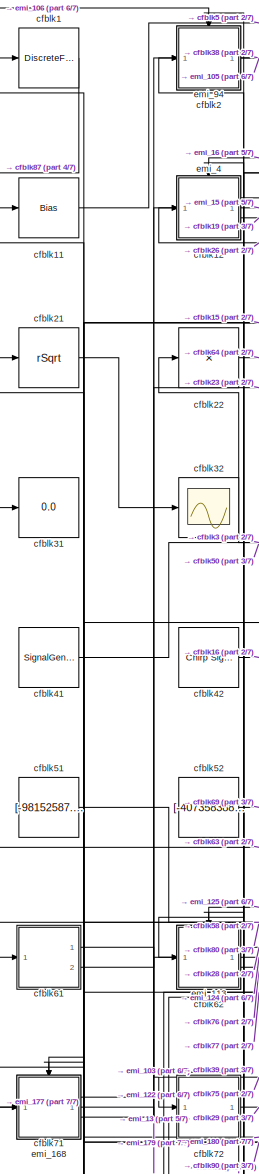
[diagram: root canvas - part 1/7, top left region]
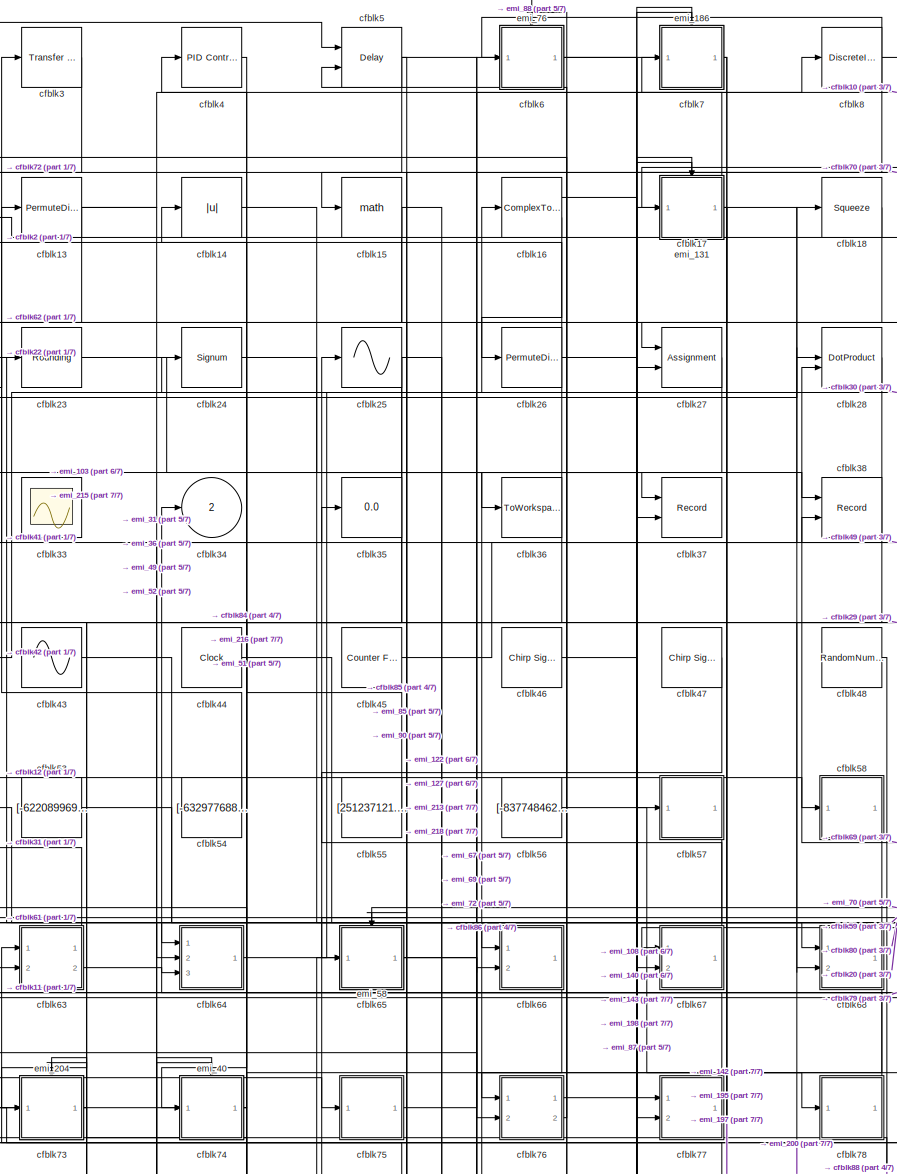
[diagram: root canvas - part 2/7, top center region]
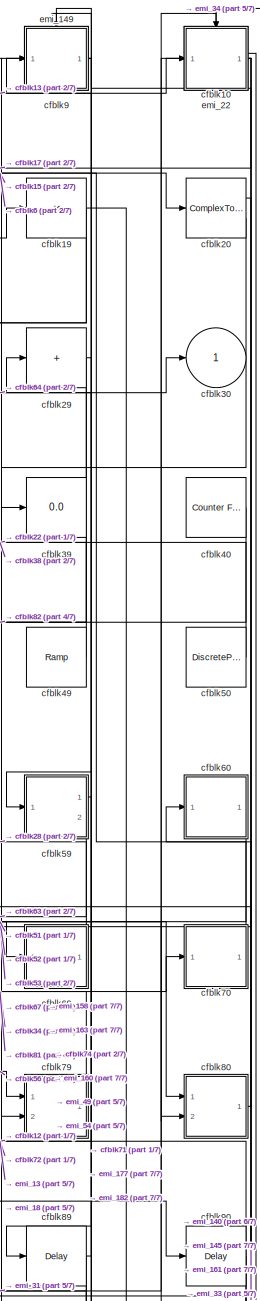
[diagram: root canvas - part 3/7, top right region]
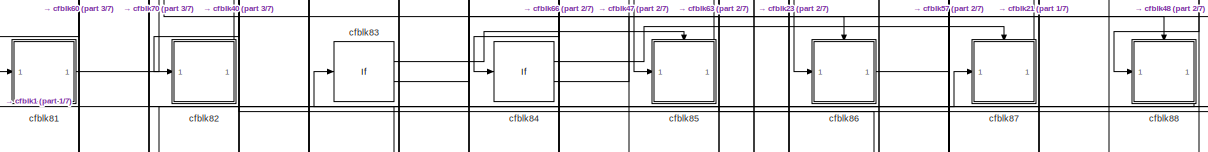
[diagram: root canvas - part 4/7, full width, middle band]
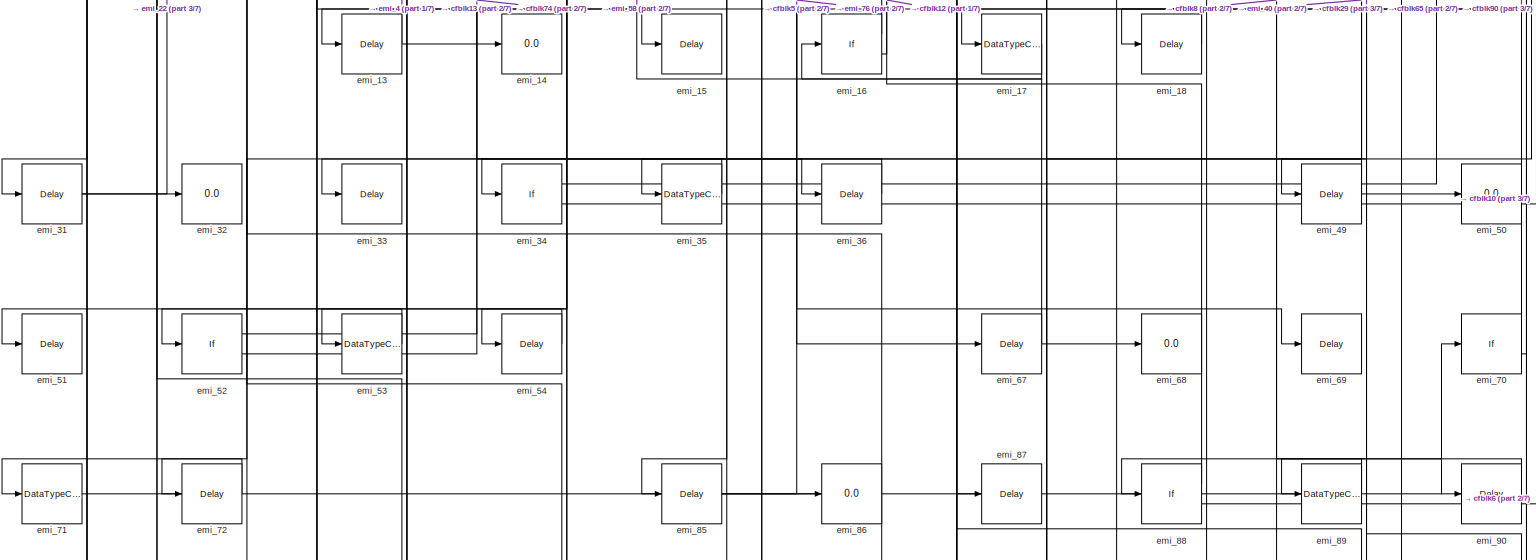
[diagram: root canvas - part 5/7, full width, bottom band]
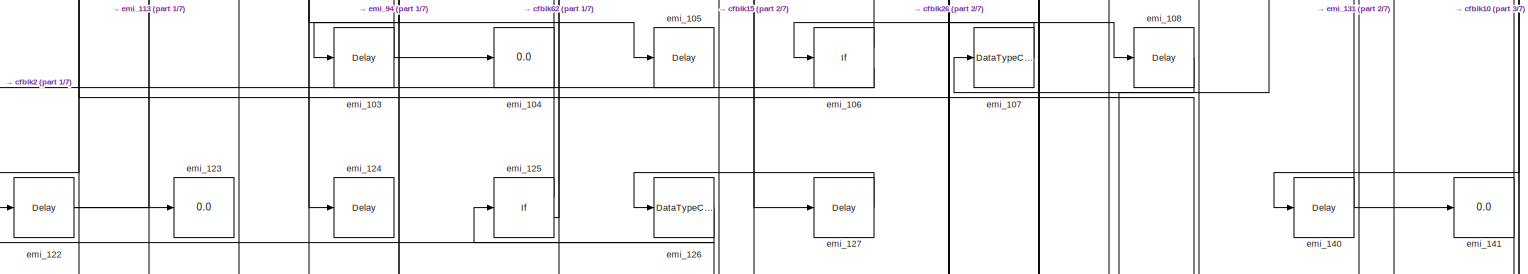
[diagram: root canvas - part 6/7, full width, bottom band]
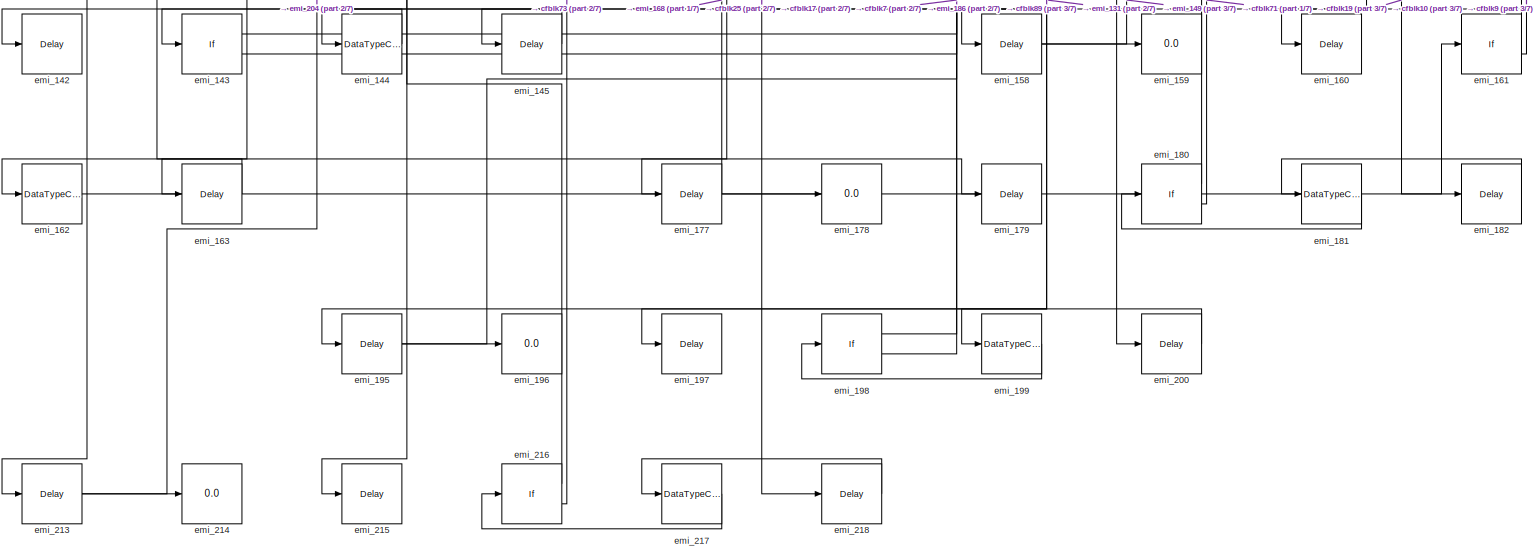
[diagram: root canvas - part 7/7, full width, bottom band]
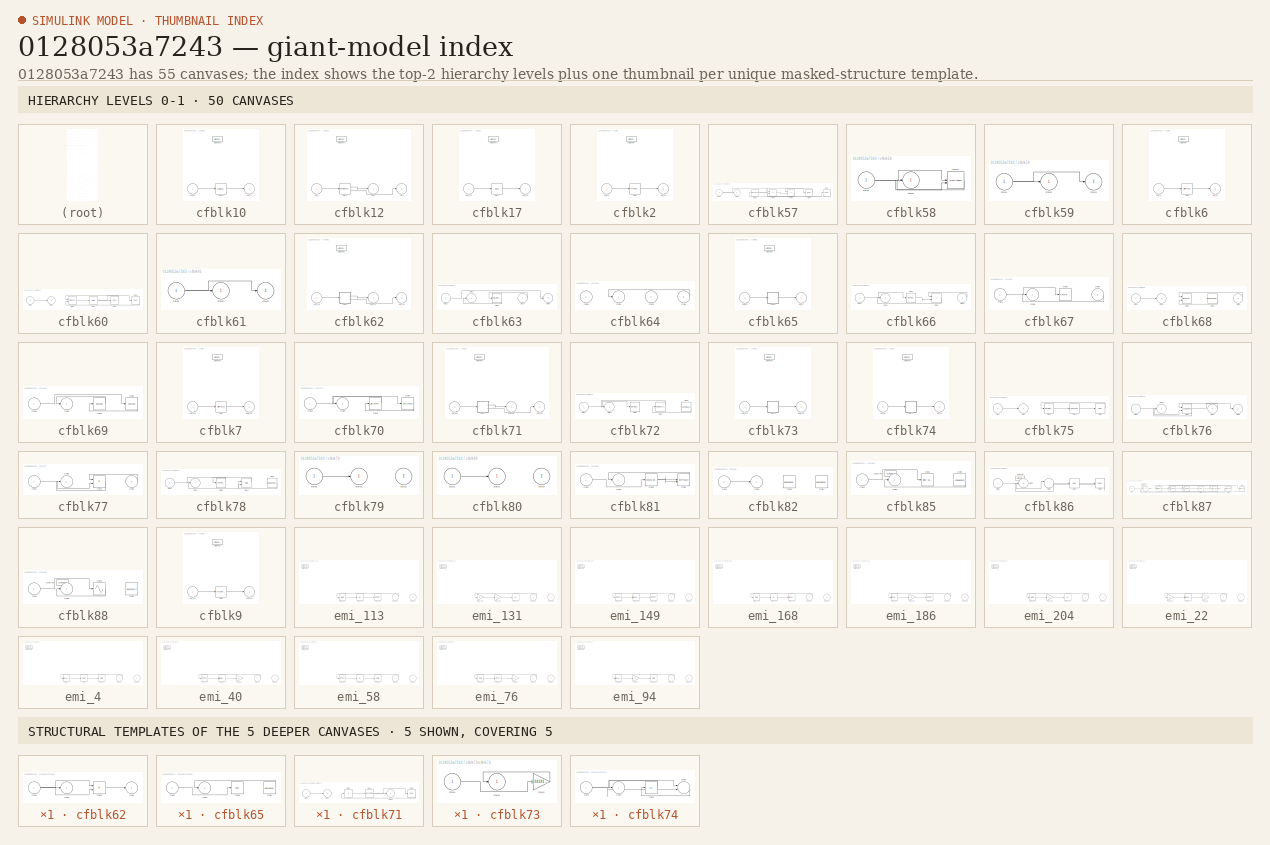
[diagram: thumbnail index - top-2 hierarchy levels (50 canvases) + 5 structural-template representatives of the remaining 5 canvases]
MODEL slx_0128053a7243
KIND model
CONFIG AbsTol = auto
CONFIG EnableMultiTasking = off
CONFIG FixedStep = auto
CONFIG MaxStep = auto
CONFIG MinStep = auto
CONFIG RelTol = 1e-3
CONFIG SampleTimeConstraint = Unconstrained
CONFIG SolverName = VariableStepAuto
CONFIG StartTime = 0.0
CONFIG StopTime = 10.0
BLOCK [DiscreteFir] cfblk1
  InputPortMap = u0
  OutputPortMap = o0
  Ports = [1, 1]
  SampleTime = 1
BLOCK [SubSystem] cfblk10
  Ports = [1, 1, 0, 0, 0, 0, 0, 1]
  RequestExecContextInheritance = off
  TreatAsAtomicUnit = on
BLOCK [ActionPort] cfblk10/Action Port
  ActionPortLabel = else
BLOCK [Trigonometry] cfblk10/cfblk10
  Ports = [1, 1]
BLOCK [Inport] cfblk10/emi_20
BLOCK [Outport] cfblk10/emi_21
BLOCK [Bias] cfblk11
  Bias = [-196383932.496117]
  SaturateOnIntegerOverflow = off
BLOCK [SubSystem] cfblk12
  Ports = [1, 2, 0, 0, 0, 0, 0, 1]
  RequestExecContextInheritance = off
  TreatAsAtomicUnit = on
BLOCK [ActionPort] cfblk12/Action Port
  ActionPortLabel = else
BLOCK [ComplexToMagnitudeAngle] cfblk12/cfblk12
  Ports = [1, 2]
BLOCK [Inport] cfblk12/emi_1
BLOCK [Outport] cfblk12/emi_2
BLOCK [Outport] cfblk12/emi_3
  Port = 2
BLOCK [PermuteDimensions] cfblk13
BLOCK [Abs] cfblk14
  SaturateOnIntegerOverflow = off
BLOCK [Math] cfblk15
  Ports = [1, 1]
BLOCK [ComplexToMagnitudeAngle] cfblk16
  Ports = [1, 2]
BLOCK [SubSystem] cfblk17
  Ports = [1, 1, 0, 0, 0, 0, 0, 1]
  RequestExecContextInheritance = off
  TreatAsAtomicUnit = on
BLOCK [ActionPort] cfblk17/Action Port
  ActionPortLabel = else
BLOCK [Sqrt] cfblk17/cfblk17
BLOCK [Inport] cfblk17/emi_129
BLOCK [Outport] cfblk17/emi_130
BLOCK [Squeeze] cfblk18
BLOCK [Product] cfblk19
  Inputs = *
  Ports = [1, 1]
BLOCK [SubSystem] cfblk2
  Ports = [1, 1, 0, 0, 0, 0, 0, 1]
  RequestExecContextInheritance = off
  TreatAsAtomicUnit = on
BLOCK [ActionPort] cfblk2/Action Port
  ActionPortLabel = else
BLOCK [Reference] cfblk2/cfblk2  REF=simulink/Discrete/Transfer Fcn
First Order
  Ports = [1, 1]
  SourceBlock = simulink/Discrete/Transfer Fcn\nFirst Order
  SourceProductBaseCode = SL
  SourceType = First Order Transfer Fcn
BLOCK [Inport] cfblk2/emi_92
BLOCK [Outport] cfblk2/emi_93
BLOCK [ComplexToMagnitudeAngle] cfblk20
  Ports = [1, 2]
BLOCK [Sqrt] cfblk21
  AlgorithmType = Newton-Raphson
  Operator = rSqrt
BLOCK [Product] cfblk22
  Inputs = *
  Ports = [1, 1]
BLOCK [Rounding] cfblk23
BLOCK [Signum] cfblk24
BLOCK [Sin] cfblk25
  Ports = [1, 1]
  SampleTime = 0
  TimeSource = Use external signal
BLOCK [PermuteDimensions] cfblk26
BLOCK [Assignment] cfblk27
  DiagnosticForDimensions = Warning
  IndexOptions = Index vector (dialog)
  Indices = 1
  OutputSizes = 1
  Ports = [2, 1]
BLOCK [DotProduct] cfblk28
  OutDataTypeStr = Inherit: Inherit via internal rule
BLOCK [Sum] cfblk29
  IconShape = rectangular
  Inputs = +
  Ports = [1, 1]
BLOCK [Reference] cfblk3  REF=simulink/Discrete/Transfer Fcn
First Order
  Ports = [1, 1]
  SourceBlock = simulink/Discrete/Transfer Fcn\nFirst Order
  SourceProductBaseCode = SL
  SourceType = First Order Transfer Fcn
BLOCK [Outport] cfblk30
BLOCK [Display] cfblk31
  Decimation = 1
  Ports = [1]
BLOCK [Scope] cfblk32
  Floating = off
  NumInputPorts = 1
  Ports = [1]
  ScopeSpecificationString = Simulink.scopes.TimeScopeBlockCfg('CurrentConfiguration', extmgr.ConfigurationSet(extmgr.Configuration('Core','General UI',true),extmgr.Configuration('Core','Source UI',true),extmgr.Configuration('Sources','WiredSimulink',true),extmgr.Configuration('Visuals','Time Domain',true),extmgr.Configuration('Tools','Plot Navigation',true),extmgr.Configuration('Tools','Measurements',true)),'Version','2021b'...<+1ch>
BLOCK [Scope] cfblk33
  Floating = on
  NumInputPorts = 1
  Ports = []
  ScopeSpecificationString = Simulink.scopes.TimeScopeBlockCfg('CurrentConfiguration', extmgr.ConfigurationSet(extmgr.Configuration('Core','General UI',true),extmgr.Configuration('Core','Source UI',true),extmgr.Configuration('Sources','WiredSimulink',true),extmgr.Configuration('Visuals','Time Domain',true),extmgr.Configuration('Tools','Plot Navigation',true),extmgr.Configuration('Tools','Measurements',true)),'Version','2021b'...<+1ch>
BLOCK [Outport] cfblk34
  Port = 2
BLOCK [Display] cfblk35
  Decimation = 1
  Ports = [1]
BLOCK [ToWorkspace] cfblk36
  FixptAsFi = on
  MaxDataPoints = inf
  Ports = [1]
  SampleTime = -1
  SaveFormat = Timeseries
  VariableName = degkbxy
BLOCK [Record] cfblk37
  CompatibilityTag = XY
  FileSettingsInternal = {"entries":[{"content":{"excelSettings":{"content":{},"type":"Streamout.ExcelSettings"}},"type":"Streamout.FileSettingStorage","uuid":"f10d7984-3c8e-4a01-b437-64e6950a7f1c"}],"packageUris":["http://schema.mathworks.com/mf0/streamout_blocks/R2020a"],"version":"1.0"}
  Layout = [1 1]
  Ports = [2]
  SignalsInternal = {"entries":[{"content":{"signals":[{"content":{"blockPath":["sampleModel1_pp_1_1/cfblk37"],"channel":[],"dimensions":[1],"domain":"sampleModel1_pp_1_1/cfblk37","lineColor":"#77ac30","plots":[],"port":1,"sid":[""],"signalID":978,"signalName":"cfblk14"},"type":"RecordBlkView.Signal","uuid":"64c2965d-c8c3-42f9-aeb4-1a9e7a6147a8"},{"content":{"blockPath":["sampleModel1_pp_1_1/cfblk37"],"channel":[],"d...<+401ch>
  VisualizationBindings = {"xyplotplugin":{"info":[{"series":[],"subplotID":1}]}}
BLOCK [Record] cfblk38
  CompatibilityTag = XY
  FileSettingsInternal = {"entries":[{"content":{"excelSettings":{"content":{},"type":"Streamout.ExcelSettings"}},"type":"Streamout.FileSettingStorage","uuid":"de5ebdad-7bfa-474c-9602-9eb7a528d104"}],"packageUris":["http://schema.mathworks.com/mf0/streamout_blocks/R2020a"],"version":"1.0"}
  Layout = [1 1]
  Ports = [2]
  SignalsInternal = {"entries":[{"content":{"signals":[{"content":{"blockPath":["sampleModel1_pp_1_1/cfblk38"],"channel":[],"dimensions":[1],"domain":"sampleModel1_pp_1_1/cfblk38","lineColor":"#a2142f","plots":[],"port":1,"sid":[""],"signalID":986,"signalName":"cfblk2"},"type":"RecordBlkView.Signal","uuid":"59823cac-66f4-4fb3-a1c8-ec7d4885dc8b"},{"content":{"blockPath":["sampleModel1_pp_1_1/cfblk38"],"channel":[],"di...<+398ch>
  VisualizationBindings = {"xyplotplugin":{"info":[{"series":[],"subplotID":1}]}}
BLOCK [Display] cfblk39
  Decimation = 1
  Ports = [1]
BLOCK [Reference] cfblk4  REF=slpidlib/PID Controller
  Ports = [1, 1]
  SourceBlock = slpidlib/PID Controller
  SourceProductBaseCode = SL
  SourceType = PID 1dof
BLOCK [Reference] cfblk40  REF=simulink/Sources/Counter
Free-Running
  Ports = [0, 1]
  SourceBlock = simulink/Sources/Counter\nFree-Running
  SourceProductBaseCode = SL
  SourceType = Counter Free-Running
BLOCK [SignalGenerator] cfblk41
  Amplitude = [-21494723.199962]
  Ports = [0, 1]
  WaveForm = square
BLOCK [Reference] cfblk42  REF=simulink/Sources/Chirp Signal
  Ports = [0, 1]
  SourceBlock = simulink/Sources/Chirp Signal
  SourceProductBaseCode = SL
  SourceType = chirp
BLOCK [Sin] cfblk43
  Amplitude = [-220522326.077493]
  Bias = [-516617428.172335]
  Ports = [0, 1]
  SampleTime = 0
BLOCK [Clock] cfblk44
BLOCK [Reference] cfblk45  REF=simulink/Sources/Counter
Free-Running
  Ports = [0, 1]
  SourceBlock = simulink/Sources/Counter\nFree-Running
  SourceProductBaseCode = SL
  SourceType = Counter Free-Running
BLOCK [Reference] cfblk46  REF=simulink/Sources/Chirp Signal
  Ports = [0, 1]
  SourceBlock = simulink/Sources/Chirp Signal
  SourceProductBaseCode = SL
  SourceType = chirp
BLOCK [Reference] cfblk47  REF=simulink/Sources/Chirp Signal
  Ports = [0, 1]
  SourceBlock = simulink/Sources/Chirp Signal
  SourceProductBaseCode = SL
  SourceType = chirp
BLOCK [RandomNumber] cfblk48
  Mean = [-53044.017326]
  SampleTime = 0.1
  Seed = [821194040.000000]
  Variance = [35315.857122]
BLOCK [Reference] cfblk49  REF=simulink/Sources/Ramp
  Ports = [0, 1]
  SourceBlock = simulink/Sources/Ramp
  SourceProductBaseCode = SL
  SourceType = Ramp
BLOCK [Delay] cfblk5
  InputPortMap = u0,e6
  Ports = [2, 1]
  SampleTime = 1
  ShowEnablePort = on
BLOCK [DiscretePulseGenerator] cfblk50
  Amplitude = [298230949.912904]
  Period = [73172238.834145]
  PhaseDelay = [6.000000]
  Ports = [0, 1]
  PulseType = Time based
  PulseWidth = 5
BLOCK [Constant] cfblk51
  SampleTime = 1
  Value = [-98152587.138110]
BLOCK [Constant] cfblk52
  SampleTime = 1
  Value = [-407358388.784454]
BLOCK [Constant] cfblk53
  SampleTime = 1
  Value = [-622089969.934911]
BLOCK [Constant] cfblk54
  SampleTime = 1
  Value = [-632977688.525460]
BLOCK [Constant] cfblk55
  SampleTime = 1
  Value = [251237121.459381]
BLOCK [Constant] cfblk56
  SampleTime = 1
  Value = [-837748462.268430]
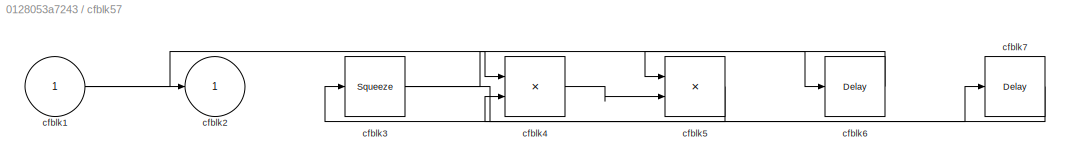
BLOCK [SubSystem] cfblk57
  Ports = [1, 1]
  RequestExecContextInheritance = off
BLOCK [Inport] cfblk57/cfblk1
BLOCK [Outport] cfblk57/cfblk2
BLOCK [Squeeze] cfblk57/cfblk3
BLOCK [Product] cfblk57/cfblk4
  Ports = [2, 1]
BLOCK [Product] cfblk57/cfblk5
  Ports = [2, 1]
BLOCK [Delay] cfblk57/cfblk6
  InputPortMap = u0
  Ports = [1, 1]
  SampleTime = 1
BLOCK [Delay] cfblk57/cfblk7
  InputPortMap = u0
  Ports = [1, 1]
  SampleTime = 1
BLOCK [SubSystem] cfblk58
  Ports = [1, 1]
  RequestExecContextInheritance = off
BLOCK [Inport] cfblk58/cfblk1
BLOCK [Outport] cfblk58/cfblk2
BLOCK [DotProduct] cfblk58/cfblk3
  OutDataTypeStr = Inherit: Inherit via internal rule
BLOCK [SubSystem] cfblk59
  Ports = [1, 2]
  RequestExecContextInheritance = off
BLOCK [Inport] cfblk59/cfblk1
BLOCK [Outport] cfblk59/cfblk2
BLOCK [Outport] cfblk59/cfblk3
  Port = 2
BLOCK [SubSystem] cfblk6
  Ports = [1, 1, 0, 0, 0, 0, 0, 1]
  RequestExecContextInheritance = off
  TreatAsAtomicUnit = on
BLOCK [ActionPort] cfblk6/Action Port
  ActionPortLabel = else
BLOCK [Reference] cfblk6/cfblk6  REF=simulink/Discrete/Difference
  Ports = [1, 1]
  SourceBlock = simulink/Discrete/Difference
  SourceProductBaseCode = SL
  SourceType = Difference
BLOCK [Inport] cfblk6/emi_74
BLOCK [Outport] cfblk6/emi_75
BLOCK [SubSystem] cfblk60
  Ports = [1, 1]
  RequestExecContextInheritance = off
BLOCK [Inport] cfblk60/cfblk1
BLOCK [Outport] cfblk60/cfblk2
BLOCK [Reference] cfblk60/cfblk3  REF=slpidlib/PID Controller (2DOF)
  Ports = [2, 1]
  SourceBlock = slpidlib/PID Controller (2DOF)
  SourceProductBaseCode = SL
  SourceType = PID 2dof
BLOCK [Sqrt] cfblk60/cfblk4
  AlgorithmType = Newton-Raphson
  Operator = rSqrt
BLOCK [Delay] cfblk60/cfblk5
  InputPortMap = u0
  Ports = [1, 1]
  SampleTime = 1
BLOCK [Delay] cfblk60/cfblk6
  InputPortMap = u0
  Ports = [1, 1]
  SampleTime = 1
BLOCK [SubSystem] cfblk61
  Ports = [1, 2]
  RequestExecContextInheritance = off
BLOCK [Inport] cfblk61/cfblk1
BLOCK [Outport] cfblk61/cfblk2
BLOCK [Outport] cfblk61/cfblk3
  Port = 2
BLOCK [SubSystem] cfblk62
  Ports = [1, 2, 0, 0, 0, 0, 0, 1]
  RequestExecContextInheritance = off
  TreatAsAtomicUnit = on
BLOCK [ActionPort] cfblk62/Action Port
  ActionPortLabel = else
BLOCK [SubSystem] cfblk62/cfblk62
  Ports = [1, 2]
  RequestExecContextInheritance = off
BLOCK [Inport] cfblk62/cfblk62/cfblk1
BLOCK [Outport] cfblk62/cfblk62/cfblk2
BLOCK [Product] cfblk62/cfblk62/cfblk3
  Ports = [2, 1]
BLOCK [Outport] cfblk62/cfblk62/cfblk4
  Port = 2
BLOCK [Inport] cfblk62/emi_110
BLOCK [Outport] cfblk62/emi_111
BLOCK [Outport] cfblk62/emi_112
  Port = 2
BLOCK [SubSystem] cfblk63
  Ports = [2, 2]
  RequestExecContextInheritance = off
BLOCK [Inport] cfblk63/cfblk1
BLOCK [Outport] cfblk63/cfblk2
BLOCK [DiscreteFir] cfblk63/cfblk3
  InputPortMap = u0
  OutputPortMap = o0
  Ports = [1, 1]
  SampleTime = 1
BLOCK [Inport] cfblk63/cfblk4
  Port = 2
BLOCK [Outport] cfblk63/cfblk5
  Port = 2
BLOCK [SubSystem] cfblk64
  Ports = [3, 1]
  RequestExecContextInheritance = off
BLOCK [Inport] cfblk64/cfblk1
BLOCK [Outport] cfblk64/cfblk2
BLOCK [Inport] cfblk64/cfblk3
  Port = 2
BLOCK [Inport] cfblk64/cfblk4
  Port = 3
BLOCK [SubSystem] cfblk65
  Ports = [1, 1, 0, 0, 0, 0, 0, 1]
  RequestExecContextInheritance = off
  TreatAsAtomicUnit = on
BLOCK [ActionPort] cfblk65/Action Port
  ActionPortLabel = else
BLOCK [SubSystem] cfblk65/cfblk65
  Ports = [1, 1]
  RequestExecContextInheritance = off
BLOCK [Inport] cfblk65/cfblk65/cfblk1
BLOCK [Outport] cfblk65/cfblk65/cfblk2
BLOCK [Delay] cfblk65/cfblk65/cfblk3
  InputPortMap = u0
  Ports = [1, 1]
  SampleTime = 1
BLOCK [Constant] cfblk65/cfblk65/cfblk4
  SampleTime = 1
  Value = [488148520.734925]
BLOCK [Inport] cfblk65/emi_56
BLOCK [Outport] cfblk65/emi_57
BLOCK [SubSystem] cfblk66
  Ports = [2, 1]
  RequestExecContextInheritance = off
BLOCK [Inport] cfblk66/cfblk1
BLOCK [Outport] cfblk66/cfblk2
BLOCK [Reference] cfblk66/cfblk3  REF=simulink/Discrete/Transfer Fcn
Real Zero
  Ports = [1, 1]
  SourceBlock = simulink/Discrete/Transfer Fcn\nReal Zero
  SourceProductBaseCode = SL
  SourceType = Transfer Fcn Real Zero
BLOCK [Sum] cfblk66/cfblk4
  IconShape = rectangular
  Ports = [2, 1]
BLOCK [Inport] cfblk66/cfblk5
  Port = 2
BLOCK [SubSystem] cfblk67
  Ports = [2, 1]
  RequestExecContextInheritance = off
BLOCK [Inport] cfblk67/cfblk1
BLOCK [Outport] cfblk67/cfblk2
BLOCK [Reference] cfblk67/cfblk3  REF=simulink/Discrete/Transfer Fcn
Lead or Lag
  Ports = [1, 1]
  SourceBlock = simulink/Discrete/Transfer Fcn\nLead or Lag
  SourceProductBaseCode = SL
  SourceType = Lead or Lag Compensator
BLOCK [Inport] cfblk67/cfblk4
  Port = 2
BLOCK [SubSystem] cfblk68
  Ports = [2, 1]
  RequestExecContextInheritance = off
BLOCK [Inport] cfblk68/cfblk1
BLOCK [Outport] cfblk68/cfblk2
BLOCK [Reference] cfblk68/cfblk3  REF=simulink/Math
Operations/MinMax
Running
Resettable
  Ports = [2, 1]
  SourceBlock = simulink/Math\nOperations/MinMax\nRunning\nResettable
  SourceProductBaseCode = SL
  SourceType = MinMax Running Resettable
BLOCK [Constant] cfblk68/cfblk4
  SampleTime = 1
  Value = [650627590.804091]
BLOCK [Inport] cfblk68/cfblk5
  Port = 2
BLOCK [SubSystem] cfblk69
  Ports = [1, 1]
  RequestExecContextInheritance = off
BLOCK [Inport] cfblk69/cfblk1
BLOCK [Outport] cfblk69/cfblk2
BLOCK [Rounding] cfblk69/cfblk3
BLOCK [Reshape] cfblk69/cfblk4
  Ports = [1, 1]
BLOCK [SubSystem] cfblk7
  Ports = [1, 1, 0, 0, 0, 0, 0, 1]
  RequestExecContextInheritance = off
  TreatAsAtomicUnit = on
BLOCK [ActionPort] cfblk7/Action Port
  ActionPortLabel = else
BLOCK [Reference] cfblk7/cfblk7  REF=simulink/Discrete/Difference
  Ports = [1, 1]
  SourceBlock = simulink/Discrete/Difference
  SourceProductBaseCode = SL
  SourceType = Difference
BLOCK [Inport] cfblk7/emi_184
BLOCK [Outport] cfblk7/emi_185
BLOCK [SubSystem] cfblk70
  Ports = [1, 1]
  RequestExecContextInheritance = off
BLOCK [Inport] cfblk70/cfblk1
BLOCK [Outport] cfblk70/cfblk2
BLOCK [DiscreteFilter] cfblk70/cfblk3
  InputPortMap = u0
  Ports = [1, 1]
  SampleTime = 1
BLOCK [UnaryMinus] cfblk70/cfblk4
BLOCK [SubSystem] cfblk71
  Ports = [1, 2, 0, 0, 0, 0, 0, 1]
  RequestExecContextInheritance = off
  TreatAsAtomicUnit = on
BLOCK [ActionPort] cfblk71/Action Port
  ActionPortLabel = else
BLOCK [SubSystem] cfblk71/cfblk71
  Ports = [1, 2]
  RequestExecContextInheritance = off
BLOCK [Inport] cfblk71/cfblk71/cfblk1
BLOCK [Outport] cfblk71/cfblk71/cfblk2
BLOCK [Product] cfblk71/cfblk71/cfblk3
  Inputs = *
  Ports = [1, 1]
BLOCK [Rounding] cfblk71/cfblk71/cfblk4
BLOCK [Outport] cfblk71/cfblk71/cfblk5
  Port = 2
BLOCK [Delay] cfblk71/cfblk71/cfblk6
  InputPortMap = u0
  Ports = [1, 1]
  SampleTime = 1
BLOCK [Inport] cfblk71/emi_165
BLOCK [Outport] cfblk71/emi_166
BLOCK [Outport] cfblk71/emi_167
  Port = 2
BLOCK [SubSystem] cfblk72
  Ports = [1, 1]
  RequestExecContextInheritance = off
BLOCK [Inport] cfblk72/cfblk1
BLOCK [Outport] cfblk72/cfblk2
BLOCK [DiscreteStateSpace] cfblk72/cfblk3
BLOCK [ComplexToMagnitudeAngle] cfblk72/cfblk4
  Ports = [1, 2]
BLOCK [Constant] cfblk72/cfblk5
  SampleTime = 1
  Value = [711045611.691823]
BLOCK [SubSystem] cfblk73
  Ports = [1, 1, 0, 0, 0, 0, 0, 1]
  RequestExecContextInheritance = off
  TreatAsAtomicUnit = on
BLOCK [ActionPort] cfblk73/Action Port
  ActionPortLabel = else
BLOCK [SubSystem] cfblk73/cfblk73
  Ports = [1, 1]
  RequestExecContextInheritance = off
BLOCK [Inport] cfblk73/cfblk73/cfblk1
BLOCK [Outport] cfblk73/cfblk73/cfblk2
BLOCK [Gain] cfblk73/cfblk73/cfblk3
  Gain = [234181768.786447]
BLOCK [Inport] cfblk73/emi_202
BLOCK [Outport] cfblk73/emi_203
BLOCK [SubSystem] cfblk74
  Ports = [1, 1, 0, 0, 0, 0, 0, 1]
  RequestExecContextInheritance = off
  TreatAsAtomicUnit = on
BLOCK [ActionPort] cfblk74/Action Port
  ActionPortLabel = else
BLOCK [SubSystem] cfblk74/cfblk74
  Ports = [1, 1]
  RequestExecContextInheritance = off
BLOCK [Inport] cfblk74/cfblk74/cfblk1
BLOCK [Outport] cfblk74/cfblk74/cfblk2
BLOCK [UnitDelay] cfblk74/cfblk74/cfblk3
  HasFrameUpgradeWarning = on
BLOCK [Sum] cfblk74/cfblk74/cfblk4
  Inputs = |++
  Ports = [2, 1]
BLOCK [Inport] cfblk74/emi_38
BLOCK [Outport] cfblk74/emi_39
BLOCK [SubSystem] cfblk75
  Ports = [1, 1]
  RequestExecContextInheritance = off
BLOCK [Inport] cfblk75/cfblk1
BLOCK [Outport] cfblk75/cfblk2
BLOCK [DiscreteStateSpace] cfblk75/cfblk3
BLOCK [Reshape] cfblk75/cfblk4
  Ports = [1, 1]
BLOCK [Delay] cfblk75/cfblk5
  InputPortMap = u0
  Ports = [1, 1]
  SampleTime = 1
BLOCK [SubSystem] cfblk76
  Ports = [2, 2]
  RequestExecContextInheritance = off
BLOCK [Inport] cfblk76/cfblk1
BLOCK [Outport] cfblk76/cfblk2
BLOCK [Assignment] cfblk76/cfblk3
  DiagnosticForDimensions = Warning
  IndexOptions = Index vector (dialog)
  Indices = 1
  OutputSizes = 1
  Ports = [2, 1]
BLOCK [Inport] cfblk76/cfblk4
  Port = 2
BLOCK [Outport] cfblk76/cfblk5
  Port = 2
BLOCK [SubSystem] cfblk77
  Ports = [2, 1]
  RequestExecContextInheritance = off
BLOCK [Inport] cfblk77/cfblk1
BLOCK [Outport] cfblk77/cfblk2
BLOCK [Product] cfblk77/cfblk3
  Ports = [2, 1]
BLOCK [Inport] cfblk77/cfblk4
  Port = 2
BLOCK [SubSystem] cfblk78
  Ports = [1, 1]
  RequestExecContextInheritance = off
BLOCK [Inport] cfblk78/cfblk1
BLOCK [Outport] cfblk78/cfblk2
BLOCK [Reference] cfblk78/cfblk3  REF=simulink/Discrete/Transfer Fcn
Lead or Lag
  Ports = [1, 1]
  SourceBlock = simulink/Discrete/Transfer Fcn\nLead or Lag
  SourceProductBaseCode = SL
  SourceType = Lead or Lag Compensator
BLOCK [Math] cfblk78/cfblk4
  Operator = mod
  Ports = [2, 1]
BLOCK [Constant] cfblk78/cfblk5
  SampleTime = 1
  Value = [350664131.493999]
BLOCK [SubSystem] cfblk79
  Ports = [2, 1]
  RequestExecContextInheritance = off
BLOCK [Inport] cfblk79/cfblk1
BLOCK [Outport] cfblk79/cfblk2
BLOCK [Inport] cfblk79/cfblk3
  Port = 2
BLOCK [DiscreteIntegrator] cfblk8
  ICPrevOutput = DiscIntNeverNeededParam
  ICPrevScaledInput = DiscIntNeverNeededParam
  InitialConditionSetting = Auto
  Ports = [1, 1]
BLOCK [SubSystem] cfblk80
  Ports = [2, 1]
  RequestExecContextInheritance = off
BLOCK [Inport] cfblk80/cfblk1
BLOCK [Outport] cfblk80/cfblk2
BLOCK [Inport] cfblk80/cfblk3
  Port = 2
BLOCK [SubSystem] cfblk81
  Ports = [1, 1]
  RequestExecContextInheritance = off
BLOCK [Inport] cfblk81/cfblk1
BLOCK [Outport] cfblk81/cfblk2
BLOCK [Reference] cfblk81/cfblk3  REF=simulink/Discrete/Tapped Delay
  Ports = [1, 1]
  SourceBlock = simulink/Discrete/Tapped Delay
  SourceProductBaseCode = SL
  SourceType = Tapped Delay Line
BLOCK [DotProduct] cfblk81/cfblk4
  OutDataTypeStr = Inherit: Inherit via internal rule
BLOCK [SubSystem] cfblk82
  Ports = [1, 1]
  RequestExecContextInheritance = off
BLOCK [Inport] cfblk82/cfblk1
BLOCK [Outport] cfblk82/cfblk2
BLOCK [Constant] cfblk82/cfblk3
  SampleTime = 1
  Value = [358033508.186404]
BLOCK [Constant] cfblk82/cfblk4
  SampleTime = 1
  Value = [890348226.218803]
BLOCK [If] cfblk83
  IfExpression = u1 >= 0
  Ports = [1, 2]
  SampleTime = 1
BLOCK [If] cfblk84
  IfExpression = u1 >= 0
  Ports = [1, 2]
  SampleTime = 1
BLOCK [SubSystem] cfblk85
  Ports = [1, 1, 0, 0, 0, 0, 0, 1]
  RequestExecContextInheritance = off
  TreatAsAtomicUnit = on
BLOCK [ActionPort] cfblk85/Action Port
  ActionPortLabel = if(u1 >= 0)
BLOCK [Inport] cfblk85/cfblk1
BLOCK [Outport] cfblk85/cfblk2
BLOCK [Reference] cfblk85/cfblk3  REF=simulink/Math
Operations/Slider
Gain
  Ports = [1, 1]
  SourceBlock = simulink/Math\nOperations/Slider\nGain
  SourceProductBaseCode = SL
  SourceType = Slider Gain
BLOCK [Constant] cfblk85/cfblk4
  SampleTime = 1
  Value = [-299563973.117790]
BLOCK [SubSystem] cfblk86
  Ports = [1, 1, 0, 0, 0, 0, 0, 1]
  RequestExecContextInheritance = off
  TreatAsAtomicUnit = on
BLOCK [ActionPort] cfblk86/Action Port
  ActionPortLabel = else
BLOCK [Inport] cfblk86/cfblk1
BLOCK [Outport] cfblk86/cfblk2
BLOCK [Sum] cfblk86/cfblk3
  Inputs = |++
  Ports = [2, 1]
BLOCK [Bias] cfblk86/cfblk4
  Bias = [879658940.689841]
  SaturateOnIntegerOverflow = off
BLOCK [Delay] cfblk86/cfblk5
  InputPortMap = u0
  Ports = [1, 1]
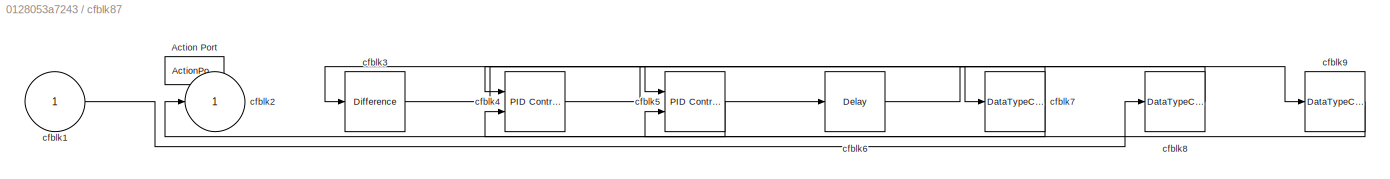
BLOCK [SubSystem] cfblk87
  Ports = [1, 1, 0, 0, 0, 0, 0, 1]
  RequestExecContextInheritance = off
  TreatAsAtomicUnit = on
BLOCK [ActionPort] cfblk87/Action Port
  ActionPortLabel = if(u1 >= 0)
BLOCK [Inport] cfblk87/cfblk1
BLOCK [Outport] cfblk87/cfblk2
BLOCK [Reference] cfblk87/cfblk3  REF=simulink/Discrete/Difference
  Ports = [1, 1]
  SourceBlock = simulink/Discrete/Difference
  SourceProductBaseCode = SL
  SourceType = Difference
BLOCK [Reference] cfblk87/cfblk4  REF=slpidlib/PID Controller (2DOF)
  Ports = [2, 1]
  SourceBlock = slpidlib/PID Controller (2DOF)
  SourceProductBaseCode = SL
  SourceType = PID 2dof
BLOCK [Reference] cfblk87/cfblk5  REF=slpidlib/PID Controller (2DOF)
  Ports = [2, 1]
  SourceBlock = slpidlib/PID Controller (2DOF)
  SourceProductBaseCode = SL
  SourceType = PID 2dof
BLOCK [Delay] cfblk87/cfblk6
  InputPortMap = u0
  Ports = [1, 1]
BLOCK [DataTypeConversion] cfblk87/cfblk7
  RndMeth = Floor
  SaturateOnIntegerOverflow = off
BLOCK [DataTypeConversion] cfblk87/cfblk8
  RndMeth = Floor
  SaturateOnIntegerOverflow = off
BLOCK [DataTypeConversion] cfblk87/cfblk9
  RndMeth = Floor
  SaturateOnIntegerOverflow = off
BLOCK [SubSystem] cfblk88
  Ports = [1, 1, 0, 0, 0, 0, 0, 1]
  RequestExecContextInheritance = off
  TreatAsAtomicUnit = on
BLOCK [ActionPort] cfblk88/Action Port
  ActionPortLabel = else
BLOCK [Inport] cfblk88/cfblk1
BLOCK [Outport] cfblk88/cfblk2
BLOCK [Sin] cfblk88/cfblk3
  Ports = [1, 1]
  SampleTime = 0
  TimeSource = Use external signal
BLOCK [Constant] cfblk88/cfblk4
  SampleTime = 1
  Value = [40104934.780774]
BLOCK [Delay] cfblk89
  InputPortMap = u0
  Ports = [1, 1]
  SampleTime = 1
BLOCK [SubSystem] cfblk9
  Ports = [1, 1, 0, 0, 0, 0, 0, 1]
  RequestExecContextInheritance = off
  TreatAsAtomicUnit = on
BLOCK [ActionPort] cfblk9/Action Port
  ActionPortLabel = else
BLOCK [Reference] cfblk9/cfblk9  REF=simulink/Discrete/Transfer Fcn
First Order
  Ports = [1, 1]
  SourceBlock = simulink/Discrete/Transfer Fcn\nFirst Order
  SourceProductBaseCode = SL
  SourceType = First Order Transfer Fcn
BLOCK [Inport] cfblk9/emi_147
BLOCK [Outport] cfblk9/emi_148
BLOCK [Delay] cfblk90
  InputPortMap = u0
  Ports = [1, 1]
  SampleTime = 1
BLOCK [Delay] emi_103
  InputPortMap = u0
  Ports = [1, 1]
BLOCK [Display] emi_104
  Decimation = 1
  Ports = [1]
BLOCK [Delay] emi_105
  InputPortMap = u0
  Ports = [1, 1]
BLOCK [If] emi_106
  IfExpression = 0 > u1
  Ports = [1, 2]
BLOCK [DataTypeConversion] emi_107
  OutDataTypeStr = double
  RndMeth = Floor
  SaturateOnIntegerOverflow = off
BLOCK [Delay] emi_108
  InitialCondition = 0
  InputPortMap = u0
  Ports = [1, 1]
BLOCK [SubSystem] emi_113
  Ports = [1, 1, 0, 0, 0, 0, 0, 1]
  RequestExecContextInheritance = off
  TreatAsAtomicUnit = on
BLOCK [ActionPort] emi_113/Action Port
  ActionPortLabel = if(0 > u1)
BLOCK [Math] emi_113/emi_117
  Ports = [1, 1]
BLOCK [Abs] emi_113/emi_118
  SaturateOnIntegerOverflow = off
BLOCK [MinMax] emi_113/emi_119
  Ports = [1, 1]
BLOCK [Inport] emi_113/emi_120
BLOCK [Outport] emi_113/emi_121
BLOCK [Delay] emi_122
  InputPortMap = u0
  Ports = [1, 1]
  SampleTime = 1
BLOCK [Display] emi_123
  Decimation = 1
  Ports = [1]
BLOCK [Delay] emi_124
  InputPortMap = u0
  Ports = [1, 1]
  SampleTime = 1
BLOCK [If] emi_125
  IfExpression = 0 > u1
  Ports = [1, 2]
BLOCK [DataTypeConversion] emi_126
  OutDataTypeStr = double
  RndMeth = Floor
  SaturateOnIntegerOverflow = off
BLOCK [Delay] emi_127
  InitialCondition = 0
  InputPortMap = u0
  Ports = [1, 1]
BLOCK [Delay] emi_13
  InputPortMap = u0
  Ports = [1, 1]
BLOCK [SubSystem] emi_131
  Ports = [1, 1, 0, 0, 0, 0, 0, 1]
  RequestExecContextInheritance = off
  TreatAsAtomicUnit = on
BLOCK [ActionPort] emi_131/Action Port
  ActionPortLabel = if(0 > u1)
BLOCK [Gain] emi_131/emi_135
BLOCK [Gain] emi_131/emi_136
BLOCK [Abs] emi_131/emi_137
  SaturateOnIntegerOverflow = off
BLOCK [Inport] emi_131/emi_138
BLOCK [Outport] emi_131/emi_139
BLOCK [Display] emi_14
  Decimation = 1
  Ports = [1]
BLOCK [Delay] emi_140
  InputPortMap = u0
  Ports = [1, 1]
BLOCK [Display] emi_141
  Decimation = 1
  Ports = [1]
BLOCK [Delay] emi_142
  InputPortMap = u0
  Ports = [1, 1]
BLOCK [If] emi_143
  IfExpression = 0 > u1
  Ports = [1, 2]
BLOCK [DataTypeConversion] emi_144
  OutDataTypeStr = double
  RndMeth = Floor
  SaturateOnIntegerOverflow = off
BLOCK [Delay] emi_145
  InitialCondition = 0.026958
  InputPortMap = u0
  Ports = [1, 1]
BLOCK [SubSystem] emi_149
  Ports = [1, 1, 0, 0, 0, 0, 0, 1]
  RequestExecContextInheritance = off
  TreatAsAtomicUnit = on
BLOCK [ActionPort] emi_149/Action Port
  ActionPortLabel = if(0 > u1)
BLOCK [MinMax] emi_149/emi_153
  Ports = [1, 1]
BLOCK [Trigonometry] emi_149/emi_154
  Ports = [1, 1]
BLOCK [MinMax] emi_149/emi_155
  Ports = [1, 1]
BLOCK [Inport] emi_149/emi_156
BLOCK [Outport] emi_149/emi_157
BLOCK [Delay] emi_15
  InputPortMap = u0
  Ports = [1, 1]
BLOCK [Delay] emi_158
  InputPortMap = u0
  Ports = [1, 1]
BLOCK [Display] emi_159
  Decimation = 1
  Ports = [1]
BLOCK [If] emi_16
  IfExpression = 0 > u1
  Ports = [1, 2]
BLOCK [Delay] emi_160
  InputPortMap = u0
  Ports = [1, 1]
BLOCK [If] emi_161
  IfExpression = 0 > u1
  Ports = [1, 2]
BLOCK [DataTypeConversion] emi_162
  OutDataTypeStr = double
  RndMeth = Floor
  SaturateOnIntegerOverflow = off
BLOCK [Delay] emi_163
  InitialCondition = 0
  InputPortMap = u0
  Ports = [1, 1]
BLOCK [SubSystem] emi_168
  Ports = [1, 1, 0, 0, 0, 0, 0, 1]
  RequestExecContextInheritance = off
  TreatAsAtomicUnit = on
BLOCK [ActionPort] emi_168/Action Port
  ActionPortLabel = if(0 > u1)
BLOCK [Math] emi_168/emi_172
  Ports = [1, 1]
BLOCK [Abs] emi_168/emi_173
  SaturateOnIntegerOverflow = off
BLOCK [Trigonometry] emi_168/emi_174
  Ports = [1, 1]
BLOCK [Inport] emi_168/emi_175
BLOCK [Outport] emi_168/emi_176
BLOCK [DataTypeConversion] emi_17
  OutDataTypeStr = double
  RndMeth = Floor
  SaturateOnIntegerOverflow = off
BLOCK [Delay] emi_177
  InputPortMap = u0
  Ports = [1, 1]
  SampleTime = 1
BLOCK [Display] emi_178
  Decimation = 1
  Ports = [1]
BLOCK [Delay] emi_179
  InputPortMap = u0
  Ports = [1, 1]
  SampleTime = 1
BLOCK [Delay] emi_18
  InitialCondition = 0
  InputPortMap = u0
  Ports = [1, 1]
BLOCK [If] emi_180
  IfExpression = 0 > u1
  Ports = [1, 2]
BLOCK [DataTypeConversion] emi_181
  OutDataTypeStr = double
  RndMeth = Floor
  SaturateOnIntegerOverflow = off
BLOCK [Delay] emi_182
  InitialCondition = 0
  InputPortMap = u0
  Ports = [1, 1]
BLOCK [SubSystem] emi_186
  Ports = [1, 1, 0, 0, 0, 0, 0, 1]
  RequestExecContextInheritance = off
  TreatAsAtomicUnit = on
BLOCK [ActionPort] emi_186/Action Port
  ActionPortLabel = if(0 > u1)
BLOCK [Trigonometry] emi_186/emi_190
  Ports = [1, 1]
BLOCK [Gain] emi_186/emi_191
BLOCK [MinMax] emi_186/emi_192
  Ports = [1, 1]
BLOCK [Inport] emi_186/emi_193
BLOCK [Outport] emi_186/emi_194
BLOCK [Delay] emi_195
  InputPortMap = u0
  Ports = [1, 1]
BLOCK [Display] emi_196
  Decimation = 1
  Ports = [1]
BLOCK [Delay] emi_197
  InputPortMap = u0
  Ports = [1, 1]
BLOCK [If] emi_198
  IfExpression = 0 > u1
  Ports = [1, 2]
BLOCK [DataTypeConversion] emi_199
  OutDataTypeStr = double
  RndMeth = Floor
  SaturateOnIntegerOverflow = off
BLOCK [Delay] emi_200
  InitialCondition = 0.16419
  InputPortMap = u0
  Ports = [1, 1]
BLOCK [SubSystem] emi_204
  Ports = [1, 1, 0, 0, 0, 0, 0, 1]
  RequestExecContextInheritance = off
  TreatAsAtomicUnit = on
BLOCK [ActionPort] emi_204/Action Port
  ActionPortLabel = if(-1.586211e+00 > u1)
BLOCK [Math] emi_204/emi_208
  Ports = [1, 1]
BLOCK [Gain] emi_204/emi_209
BLOCK [Abs] emi_204/emi_210
  SaturateOnIntegerOverflow = off
BLOCK [Inport] emi_204/emi_211
BLOCK [Outport] emi_204/emi_212
BLOCK [Delay] emi_213
  InputPortMap = u0
  Ports = [1, 1]
  SampleTime = 1
BLOCK [Display] emi_214
  Decimation = 1
  Ports = [1]
BLOCK [Delay] emi_215
  InputPortMap = u0
  Ports = [1, 1]
  SampleTime = 1
BLOCK [If] emi_216
  IfExpression = -1.586211e+00 > u1
  Ports = [1, 2]
BLOCK [DataTypeConversion] emi_217
  OutDataTypeStr = double
  RndMeth = Floor
  SaturateOnIntegerOverflow = off
BLOCK [Delay] emi_218
  InitialCondition = -0.79311
  InputPortMap = u0
  Ports = [1, 1]
BLOCK [SubSystem] emi_22
  Ports = [1, 1, 0, 0, 0, 0, 0, 1]
  RequestExecContextInheritance = off
  TreatAsAtomicUnit = on
BLOCK [ActionPort] emi_22/Action Port
  ActionPortLabel = if(-1.265955e+09 > u1)
BLOCK [Gain] emi_22/emi_26
BLOCK [Trigonometry] emi_22/emi_27
  Ports = [1, 1]
BLOCK [Gain] emi_22/emi_28
BLOCK [Inport] emi_22/emi_29
BLOCK [Outport] emi_22/emi_30
BLOCK [Delay] emi_31
  InputPortMap = u0
  Ports = [1, 1]
BLOCK [Display] emi_32
  Decimation = 1
  Ports = [1]
BLOCK [Delay] emi_33
  InputPortMap = u0
  Ports = [1, 1]
BLOCK [If] emi_34
  IfExpression = -1.265955e+09 > u1
  Ports = [1, 2]
BLOCK [DataTypeConversion] emi_35
  OutDataTypeStr = double
  RndMeth = Floor
  SaturateOnIntegerOverflow = off
BLOCK [Delay] emi_36
  InitialCondition = -632977688.5255
  InputPortMap = u0
  Ports = [1, 1]
BLOCK [SubSystem] emi_4
  Ports = [1, 1, 0, 0, 0, 0, 0, 1]
  RequestExecContextInheritance = off
  TreatAsAtomicUnit = on
BLOCK [ActionPort] emi_4/Action Port
  ActionPortLabel = if(0 > u1)
BLOCK [Math] emi_4/emi_10
  Ports = [1, 1]
BLOCK [Inport] emi_4/emi_11
BLOCK [Outport] emi_4/emi_12
BLOCK [Trigonometry] emi_4/emi_8
  Ports = [1, 1]
BLOCK [Math] emi_4/emi_9
  Ports = [1, 1]
BLOCK [SubSystem] emi_40
  Ports = [1, 1, 0, 0, 0, 0, 0, 1]
  RequestExecContextInheritance = off
  TreatAsAtomicUnit = on
BLOCK [ActionPort] emi_40/Action Port
  ActionPortLabel = if(0 > u1)
BLOCK [MinMax] emi_40/emi_44
  Ports = [1, 1]
BLOCK [Trigonometry] emi_40/emi_45
  Ports = [1, 1]
BLOCK [Gain] emi_40/emi_46
BLOCK [Inport] emi_40/emi_47
BLOCK [Outport] emi_40/emi_48
BLOCK [Delay] emi_49
  InputPortMap = u0
  Ports = [1, 1]
  SampleTime = 1
BLOCK [Display] emi_50
  Decimation = 1
  Ports = [1]
BLOCK [Delay] emi_51
  InputPortMap = u0
  Ports = [1, 1]
  SampleTime = 1
BLOCK [If] emi_52
  IfExpression = 0 > u1
  Ports = [1, 2]
BLOCK [DataTypeConversion] emi_53
  OutDataTypeStr = double
  RndMeth = Floor
  SaturateOnIntegerOverflow = off
BLOCK [Delay] emi_54
  InitialCondition = 711045611.6918
  InputPortMap = u0
  Ports = [1, 1]
BLOCK [SubSystem] emi_58
  Ports = [1, 1, 0, 0, 0, 0, 0, 1]
  RequestExecContextInheritance = off
  TreatAsAtomicUnit = on
BLOCK [ActionPort] emi_58/Action Port
  ActionPortLabel = if(-3.927679e+08 > u1)
BLOCK [MinMax] emi_58/emi_62
  Ports = [1, 1]
BLOCK [Abs] emi_58/emi_63
  SaturateOnIntegerOverflow = off
BLOCK [Math] emi_58/emi_64
  Ports = [1, 1]
BLOCK [Inport] emi_58/emi_65
BLOCK [Outport] emi_58/emi_66
BLOCK [Delay] emi_67
  InputPortMap = u0
  Ports = [1, 1]
BLOCK [Display] emi_68
  Decimation = 1
  Ports = [1]
BLOCK [Delay] emi_69
  InputPortMap = u0
  Ports = [1, 1]
BLOCK [If] emi_70
  IfExpression = -3.927679e+08 > u1
  Ports = [1, 2]
BLOCK [DataTypeConversion] emi_71
  OutDataTypeStr = double
  RndMeth = Floor
  SaturateOnIntegerOverflow = off
BLOCK [Delay] emi_72
  InitialCondition = -196383937.6215
  InputPortMap = u0
  Ports = [1, 1]
BLOCK [SubSystem] emi_76
  Ports = [1, 1, 0, 0, 0, 0, 0, 1]
  RequestExecContextInheritance = off
  TreatAsAtomicUnit = on
BLOCK [ActionPort] emi_76/Action Port
  ActionPortLabel = if(0 > u1)
BLOCK [Math] emi_76/emi_80
  Ports = [1, 1]
BLOCK [MinMax] emi_76/emi_81
  Ports = [1, 1]
BLOCK [Gain] emi_76/emi_82
BLOCK [Inport] emi_76/emi_83
BLOCK [Outport] emi_76/emi_84
BLOCK [Delay] emi_85
  InputPortMap = u0
  Ports = [1, 1]
BLOCK [Display] emi_86
  Decimation = 1
  Ports = [1]
BLOCK [Delay] emi_87
  InputPortMap = u0
  Ports = [1, 1]
BLOCK [If] emi_88
  IfExpression = 0 > u1
  Ports = [1, 2]
BLOCK [DataTypeConversion] emi_89
  OutDataTypeStr = double
  RndMeth = Floor
  SaturateOnIntegerOverflow = off
BLOCK [Delay] emi_90
  InitialCondition = 0
  InputPortMap = u0
  Ports = [1, 1]
BLOCK [SubSystem] emi_94
  Ports = [1, 1, 0, 0, 0, 0, 0, 1]
  RequestExecContextInheritance = off
  TreatAsAtomicUnit = on
BLOCK [ActionPort] emi_94/Action Port
  ActionPortLabel = if(0 > u1)
BLOCK [Math] emi_94/emi_100
  Ports = [1, 1]
BLOCK [Inport] emi_94/emi_101
BLOCK [Outport] emi_94/emi_102
BLOCK [Trigonometry] emi_94/emi_98
  Ports = [1, 1]
BLOCK [Gain] emi_94/emi_99
LINE cfblk10/cfblk10:1 -> cfblk10/emi_21:1
LINE cfblk10/emi_20:1 -> cfblk10/cfblk10:1
NET cfblk10:1 -> cfblk17:1, emi_140:1, emi_145:1
LINE cfblk11:1 -> cfblk5:1
LINE cfblk12/cfblk12:1 -> cfblk12/emi_2:1
LINE cfblk12/cfblk12:2 -> cfblk12/emi_3:1
LINE cfblk12/emi_1:1 -> cfblk12/cfblk12:1
LINE cfblk12:1 -> cfblk58:1
LINE cfblk12:2 -> cfblk19:1
NET cfblk13:1 -> cfblk10:1, emi_31:1, emi_36:1
LINE cfblk14:1 -> cfblk37:1
NET cfblk15:1 -> cfblk62:1, emi_122:1, emi_127:1
LINE cfblk16:1 -> cfblk37:2
LINE cfblk16:2 -> cfblk26:1
LINE cfblk17/cfblk17:1 -> cfblk17/emi_130:1
LINE cfblk17/emi_129:1 -> cfblk17/cfblk17:1
NET cfblk17:1 -> cfblk7:1, emi_195:1, emi_200:1
LINE cfblk18:1 -> cfblk27:2
NET cfblk19:1 -> cfblk71:1, emi_177:1, emi_182:1
LINE cfblk1:1 -> cfblk87:1
LINE cfblk2/cfblk2:1 -> cfblk2/emi_93:1
LINE cfblk2/emi_92:1 -> cfblk2/cfblk2:1
LINE cfblk20:1 -> cfblk67:1
LINE cfblk20:2 -> cfblk79:2
LINE cfblk21:1 -> cfblk32:1
LINE cfblk22:1 -> cfblk64:2
LINE cfblk23:1 -> cfblk86:1
LINE cfblk24:1 -> cfblk66:2
NET cfblk25:1 -> cfblk73:1, emi_213:1, emi_218:1
NET cfblk26:1 -> cfblk2:1, emi_103:1, emi_108:1
LINE cfblk27:1 -> cfblk36:1
LINE cfblk28:1 -> cfblk68:2
NET cfblk29:1 -> cfblk74:1, emi_49:1, emi_54:1
LINE cfblk2:1 -> cfblk38:1
LINE cfblk3:1 -> cfblk72:1
LINE cfblk40:1 -> cfblk82:1
LINE cfblk41:1 -> cfblk3:1
LINE cfblk42:1 -> cfblk16:1
LINE cfblk43:1 -> cfblk66:1
LINE cfblk44:1 -> cfblk68:1
LINE cfblk45:1 -> cfblk18:1
LINE cfblk46:1 -> cfblk77:2
LINE cfblk47:1 -> cfblk85:1
LINE cfblk48:1 -> cfblk88:1
LINE cfblk49:1 -> cfblk38:2
LINE cfblk4:1 -> cfblk64:1
LINE cfblk50:1 -> cfblk22:1
LINE cfblk51:1 -> cfblk80:2
LINE cfblk52:1 -> cfblk69:1
LINE cfblk53:1 -> cfblk80:1
LINE cfblk54:1 -> cfblk13:1
LINE cfblk55:1 -> cfblk24:1
LINE cfblk56:1 -> cfblk79:1
NET cfblk57/cfblk1:1 -> cfblk57/cfblk2:1, cfblk57/cfblk4:1
NET cfblk57/cfblk3:1 -> cfblk57/cfblk6:1, cfblk57/cfblk7:1
LINE cfblk57/cfblk4:1 -> cfblk57/cfblk5:2
LINE cfblk57/cfblk5:1 -> cfblk57/cfblk3:1
LINE cfblk57/cfblk6:1 -> cfblk57/cfblk5:1
LINE cfblk57/cfblk7:1 -> cfblk57/cfblk4:2
LINE cfblk57:1 -> cfblk67:2
NET cfblk58/cfblk1:1 -> cfblk58/cfblk3:1, cfblk58/cfblk3:2
LINE cfblk58/cfblk3:1 -> cfblk58/cfblk2:1
LINE cfblk58:1 -> cfblk61:1
NET cfblk59/cfblk1:1 -> cfblk59/cfblk2:1, cfblk59/cfblk3:1
LINE cfblk59:1 -> cfblk89:1
LINE cfblk59:2 -> cfblk63:2
NET cfblk5:1 -> cfblk65:1, emi_67:1, emi_72:1
LINE cfblk6/cfblk6:1 -> cfblk6/emi_75:1
LINE cfblk6/emi_74:1 -> cfblk6/cfblk6:1
LINE cfblk60/cfblk1:1 -> cfblk60/cfblk2:1
LINE cfblk60/cfblk3:1 -> cfblk60/cfblk4:1
NET cfblk60/cfblk4:1 -> cfblk60/cfblk5:1, cfblk60/cfblk6:1
LINE cfblk60/cfblk5:1 -> cfblk60/cfblk3:1
LINE cfblk60/cfblk6:1 -> cfblk60/cfblk3:2
LINE cfblk60:1 -> cfblk81:1
NET cfblk61/cfblk1:1 -> cfblk61/cfblk2:1, cfblk61/cfblk3:1
LINE cfblk61:1 -> cfblk75:1
LINE cfblk61:2 -> cfblk23:1
NET cfblk62/cfblk62/cfblk1:1 -> cfblk62/cfblk62/cfblk2:1, cfblk62/cfblk62/cfblk3:1, cfblk62/cfblk62/cfblk3:2
LINE cfblk62/cfblk62/cfblk3:1 -> cfblk62/cfblk62/cfblk4:1
LINE cfblk62/cfblk62:1 -> cfblk62/emi_111:1
LINE cfblk62/cfblk62:2 -> cfblk62/emi_112:1
LINE cfblk62/emi_110:1 -> cfblk62/cfblk62:1
LINE cfblk62:1 -> cfblk28:1
LINE cfblk62:2 -> cfblk76:2
LINE cfblk63/cfblk1:1 -> cfblk63/cfblk5:1
LINE cfblk63/cfblk3:1 -> cfblk63/cfblk2:1
LINE cfblk63/cfblk4:1 -> cfblk63/cfblk3:1
LINE cfblk63:1 -> cfblk31:1
LINE cfblk63:2 -> cfblk64:3
LINE cfblk64/cfblk4:1 -> cfblk64/cfblk2:1
LINE cfblk64:1 -> cfblk30:1
LINE cfblk65/cfblk65/cfblk1:1 -> cfblk65/cfblk65/cfblk3:1
LINE cfblk65/cfblk65/cfblk4:1 -> cfblk65/cfblk65/cfblk2:1
LINE cfblk65/cfblk65:1 -> cfblk65/emi_57:1
LINE cfblk65/emi_56:1 -> cfblk65/cfblk65:1
LINE cfblk65:1 -> cfblk78:1
LINE cfblk66/cfblk1:1 -> cfblk66/cfblk3:1
LINE cfblk66/cfblk3:1 -> cfblk66/cfblk4:2
LINE cfblk66/cfblk4:1 -> cfblk66/cfblk2:1
LINE cfblk66/cfblk5:1 -> cfblk66/cfblk4:1
LINE cfblk66:1 -> cfblk84:1
LINE cfblk67/cfblk1:1 -> cfblk67/cfblk3:1
LINE cfblk67/cfblk4:1 -> cfblk67/cfblk2:1
LINE cfblk67:1 -> cfblk25:1
LINE cfblk68/cfblk1:1 -> cfblk68/cfblk2:1
LINE cfblk68/cfblk4:1 -> cfblk68/cfblk3:2
LINE cfblk68/cfblk5:1 -> cfblk68/cfblk3:1
LINE cfblk68:1 -> cfblk76:1
LINE cfblk69/cfblk1:1 -> cfblk69/cfblk4:1
LINE cfblk69/cfblk3:1 -> cfblk69/cfblk2:1
LINE cfblk69/cfblk4:1 -> cfblk69/cfblk3:1
LINE cfblk69:1 -> cfblk28:2
LINE cfblk6:1 -> cfblk20:1
LINE cfblk7/cfblk7:1 -> cfblk7/emi_185:1
LINE cfblk7/emi_184:1 -> cfblk7/cfblk7:1
LINE cfblk70/cfblk1:1 -> cfblk70/cfblk4:1
LINE cfblk70/cfblk3:1 -> cfblk70/cfblk2:1
LINE cfblk70/cfblk4:1 -> cfblk70/cfblk3:1
LINE cfblk70:1 -> cfblk15:1
LINE cfblk71/cfblk71/cfblk1:1 -> cfblk71/cfblk71/cfblk2:1
LINE cfblk71/cfblk71/cfblk3:1 -> cfblk71/cfblk71/cfblk4:1
NET cfblk71/cfblk71/cfblk4:1 -> cfblk71/cfblk71/cfblk5:1, cfblk71/cfblk71/cfblk6:1
LINE cfblk71/cfblk71/cfblk6:1 -> cfblk71/cfblk71/cfblk3:1
LINE cfblk71/cfblk71:1 -> cfblk71/emi_166:1
LINE cfblk71/cfblk71:2 -> cfblk71/emi_167:1
LINE cfblk71/emi_165:1 -> cfblk71/cfblk71:1
LINE cfblk71:1 -> cfblk39:1
LINE cfblk71:2 -> cfblk90:1
LINE cfblk72/cfblk1:1 -> cfblk72/cfblk3:1
LINE cfblk72/cfblk4:1 -> cfblk72/cfblk2:1
LINE cfblk72/cfblk5:1 -> cfblk72/cfblk4:1
LINE cfblk72:1 -> cfblk29:1
LINE cfblk73/cfblk73/cfblk1:1 -> cfblk73/cfblk73/cfblk3:1
LINE cfblk73/cfblk73/cfblk3:1 -> cfblk73/cfblk73/cfblk2:1
LINE cfblk73/cfblk73:1 -> cfblk73/emi_203:1
LINE cfblk73/emi_202:1 -> cfblk73/cfblk73:1
LINE cfblk73:1 -> cfblk35:1
NET cfblk74/cfblk74/cfblk1:1 -> cfblk74/cfblk74/cfblk4:1, cfblk74/cfblk74/cfblk4:2
LINE cfblk74/cfblk74/cfblk3:1 -> cfblk74/cfblk74/cfblk2:1
LINE cfblk74/cfblk74/cfblk4:1 -> cfblk74/cfblk74/cfblk3:1
LINE cfblk74/cfblk74:1 -> cfblk74/emi_39:1
LINE cfblk74/emi_38:1 -> cfblk74/cfblk74:1
LINE cfblk74:1 -> cfblk14:1
LINE cfblk75/cfblk1:1 -> cfblk75/cfblk2:1
LINE cfblk75/cfblk3:1 -> cfblk75/cfblk4:1
LINE cfblk75/cfblk4:1 -> cfblk75/cfblk5:1
LINE cfblk75/cfblk5:1 -> cfblk75/cfblk3:1
LINE cfblk75:1 -> cfblk8:1
LINE cfblk76/cfblk1:1 -> cfblk76/cfblk3:2
NET cfblk76/cfblk3:1 -> cfblk76/cfblk2:1, cfblk76/cfblk5:1
LINE cfblk76/cfblk4:1 -> cfblk76/cfblk3:1
LINE cfblk76:1 -> cfblk77:1
LINE cfblk76:2 -> cfblk5:2
LINE cfblk77/cfblk1:1 -> cfblk77/cfblk3:2
LINE cfblk77/cfblk3:1 -> cfblk77/cfblk2:1
LINE cfblk77/cfblk4:1 -> cfblk77/cfblk3:1
LINE cfblk77:1 -> cfblk11:1
LINE cfblk78/cfblk1:1 -> cfblk78/cfblk4:1
LINE cfblk78/cfblk3:1 -> cfblk78/cfblk2:1
LINE cfblk78/cfblk4:1 -> cfblk78/cfblk3:1
LINE cfblk78/cfblk5:1 -> cfblk78/cfblk4:2
LINE cfblk78:1 -> cfblk4:1
LINE cfblk79/cfblk1:1 -> cfblk79/cfblk2:1
LINE cfblk79:1 -> cfblk34:1
LINE cfblk7:1 -> cfblk27:1
LINE cfblk80/cfblk1:1 -> cfblk80/cfblk2:1
LINE cfblk80:1 -> cfblk60:1
LINE cfblk81/cfblk1:1 -> cfblk81/cfblk3:1
NET cfblk81/cfblk3:1 -> cfblk81/cfblk4:1, cfblk81/cfblk4:2
LINE cfblk81/cfblk4:1 -> cfblk81/cfblk2:1
LINE cfblk81:1 -> cfblk70:1
LINE cfblk82/cfblk1:1 -> cfblk82/cfblk2:1
LINE cfblk82:1 -> cfblk1:1
LINE cfblk83:1 -> cfblk85:ifaction
LINE cfblk83:2 -> cfblk86:ifaction
LINE cfblk84:1 -> cfblk87:ifaction
LINE cfblk84:2 -> cfblk88:ifaction
LINE cfblk85/cfblk1:1 -> cfblk85/cfblk3:1
LINE cfblk85/cfblk4:1 -> cfblk85/cfblk2:1
LINE cfblk85:1 -> cfblk63:1
LINE cfblk86/cfblk1:1 -> cfblk86/cfblk3:1
NET cfblk86/cfblk3:1 -> cfblk86/cfblk2:1, cfblk86/cfblk4:1
LINE cfblk86/cfblk4:1 -> cfblk86/cfblk5:1
LINE cfblk86/cfblk5:1 -> cfblk86/cfblk3:2
LINE cfblk86:1 -> cfblk57:1
LINE cfblk87/cfblk1:1 -> cfblk87/cfblk8:1
LINE cfblk87/cfblk3:1 -> cfblk87/cfblk5:1
LINE cfblk87/cfblk4:1 -> cfblk87/cfblk7:1
NET cfblk87/cfblk5:1 -> cfblk87/cfblk2:1, cfblk87/cfblk6:1
LINE cfblk87/cfblk6:1 -> cfblk87/cfblk9:1
NET cfblk87/cfblk7:1 -> cfblk87/cfblk3:1, cfblk87/cfblk5:2
LINE cfblk87/cfblk8:1 -> cfblk87/cfblk4:1
LINE cfblk87/cfblk9:1 -> cfblk87/cfblk4:2
LINE cfblk87:1 -> cfblk21:1
LINE cfblk88/cfblk1:1 -> cfblk88/cfblk3:1
LINE cfblk88/cfblk3:1 -> cfblk88/cfblk2:1
LINE cfblk88:1 -> cfblk83:1
NET cfblk89:1 -> cfblk9:1, emi_158:1, emi_163:1
NET cfblk8:1 -> cfblk6:1, emi_85:1, emi_90:1
LINE cfblk9/cfblk9:1 -> cfblk9/emi_148:1
LINE cfblk9/emi_147:1 -> cfblk9/cfblk9:1
NET cfblk90:1 -> cfblk12:1, emi_13:1, emi_18:1
LINE cfblk9:1 -> cfblk59:1
NET emi_103:1 -> emi_104:1, emi_94:1
LINE emi_106:1 -> emi_94:ifaction
LINE emi_106:2 -> cfblk2:ifaction
LINE emi_107:1 -> emi_106:1
LINE emi_108:1 -> emi_107:1
LINE emi_113/emi_117:1 -> emi_113/emi_118:1
LINE emi_113/emi_118:1 -> emi_113/emi_119:1
LINE emi_113/emi_120:1 -> emi_113/emi_117:1
LINE emi_113:1 -> emi_124:1
NET emi_122:1 -> emi_113:1, emi_123:1
LINE emi_125:1 -> emi_113:ifaction
LINE emi_125:2 -> cfblk62:ifaction
LINE emi_126:1 -> emi_125:1
LINE emi_127:1 -> emi_126:1
LINE emi_131/emi_135:1 -> emi_131/emi_136:1
LINE emi_131/emi_136:1 -> emi_131/emi_137:1
LINE emi_131/emi_138:1 -> emi_131/emi_135:1
LINE emi_131:1 -> emi_142:1
NET emi_13:1 -> emi_14:1, emi_4:1
NET emi_140:1 -> emi_131:1, emi_141:1
LINE emi_143:1 -> emi_131:ifaction
LINE emi_143:2 -> cfblk17:ifaction
LINE emi_144:1 -> emi_143:1
LINE emi_145:1 -> emi_144:1
LINE emi_149/emi_153:1 -> emi_149/emi_154:1
LINE emi_149/emi_154:1 -> emi_149/emi_155:1
LINE emi_149/emi_156:1 -> emi_149/emi_153:1
LINE emi_149:1 -> emi_160:1
NET emi_158:1 -> emi_149:1, emi_159:1
LINE emi_161:1 -> emi_149:ifaction
LINE emi_161:2 -> cfblk9:ifaction
LINE emi_162:1 -> emi_161:1
LINE emi_163:1 -> emi_162:1
LINE emi_168/emi_172:1 -> emi_168/emi_173:1
LINE emi_168/emi_173:1 -> emi_168/emi_174:1
LINE emi_168/emi_175:1 -> emi_168/emi_172:1
LINE emi_168:1 -> emi_179:1
LINE emi_16:1 -> emi_4:ifaction
LINE emi_16:2 -> cfblk12:ifaction
NET emi_177:1 -> emi_168:1, emi_178:1
LINE emi_17:1 -> emi_16:1
LINE emi_180:1 -> emi_168:ifaction
LINE emi_180:2 -> cfblk71:ifaction
LINE emi_181:1 -> emi_180:1
LINE emi_182:1 -> emi_181:1
LINE emi_186/emi_190:1 -> emi_186/emi_191:1
LINE emi_186/emi_191:1 -> emi_186/emi_192:1
LINE emi_186/emi_193:1 -> emi_186/emi_190:1
LINE emi_186:1 -> emi_197:1
LINE emi_18:1 -> emi_17:1
NET emi_195:1 -> emi_186:1, emi_196:1
LINE emi_198:1 -> emi_186:ifaction
LINE emi_198:2 -> cfblk7:ifaction
LINE emi_199:1 -> emi_198:1
LINE emi_200:1 -> emi_199:1
LINE emi_204/emi_208:1 -> emi_204/emi_209:1
LINE emi_204/emi_209:1 -> emi_204/emi_210:1
LINE emi_204/emi_211:1 -> emi_204/emi_208:1
LINE emi_204:1 -> emi_215:1
NET emi_213:1 -> emi_204:1, emi_214:1
LINE emi_216:1 -> emi_204:ifaction
LINE emi_216:2 -> cfblk73:ifaction
LINE emi_217:1 -> emi_216:1
LINE emi_218:1 -> emi_217:1
LINE emi_22/emi_26:1 -> emi_22/emi_27:1
LINE emi_22/emi_27:1 -> emi_22/emi_28:1
LINE emi_22/emi_29:1 -> emi_22/emi_26:1
LINE emi_22:1 -> emi_33:1
NET emi_31:1 -> emi_22:1, emi_32:1
LINE emi_34:1 -> emi_22:ifaction
LINE emi_34:2 -> cfblk10:ifaction
LINE emi_35:1 -> emi_34:1
LINE emi_36:1 -> emi_35:1
LINE emi_4/emi_11:1 -> emi_4/emi_8:1
LINE emi_4/emi_8:1 -> emi_4/emi_9:1
LINE emi_4/emi_9:1 -> emi_4/emi_10:1
LINE emi_40/emi_44:1 -> emi_40/emi_45:1
LINE emi_40/emi_45:1 -> emi_40/emi_46:1
LINE emi_40/emi_47:1 -> emi_40/emi_44:1
LINE emi_40:1 -> emi_51:1
NET emi_49:1 -> emi_40:1, emi_50:1
LINE emi_4:1 -> emi_15:1
LINE emi_52:1 -> emi_40:ifaction
LINE emi_52:2 -> cfblk74:ifaction
LINE emi_53:1 -> emi_52:1
LINE emi_54:1 -> emi_53:1
LINE emi_58/emi_62:1 -> emi_58/emi_63:1
LINE emi_58/emi_63:1 -> emi_58/emi_64:1
LINE emi_58/emi_65:1 -> emi_58/emi_62:1
LINE emi_58:1 -> emi_69:1
NET emi_67:1 -> emi_58:1, emi_68:1
LINE emi_70:1 -> emi_58:ifaction
LINE emi_70:2 -> cfblk65:ifaction
LINE emi_71:1 -> emi_70:1
LINE emi_72:1 -> emi_71:1
LINE emi_76/emi_80:1 -> emi_76/emi_81:1
LINE emi_76/emi_81:1 -> emi_76/emi_82:1
LINE emi_76/emi_83:1 -> emi_76/emi_80:1
LINE emi_76:1 -> emi_87:1
NET emi_85:1 -> emi_76:1, emi_86:1
LINE emi_88:1 -> emi_76:ifaction
LINE emi_88:2 -> cfblk6:ifaction
LINE emi_89:1 -> emi_88:1
LINE emi_90:1 -> emi_89:1
LINE emi_94/emi_101:1 -> emi_94/emi_98:1
LINE emi_94/emi_98:1 -> emi_94/emi_99:1
LINE emi_94/emi_99:1 -> emi_94/emi_100:1
LINE emi_94:1 -> emi_105:1
note: NET lines group one-source signal fan-out (src -> all destinations, sorted); 1:1 wires keep LINE
